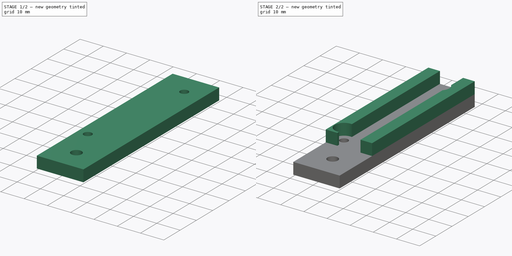
[diagram: build sequence overview — one tinted view per stage of 2, left to right]
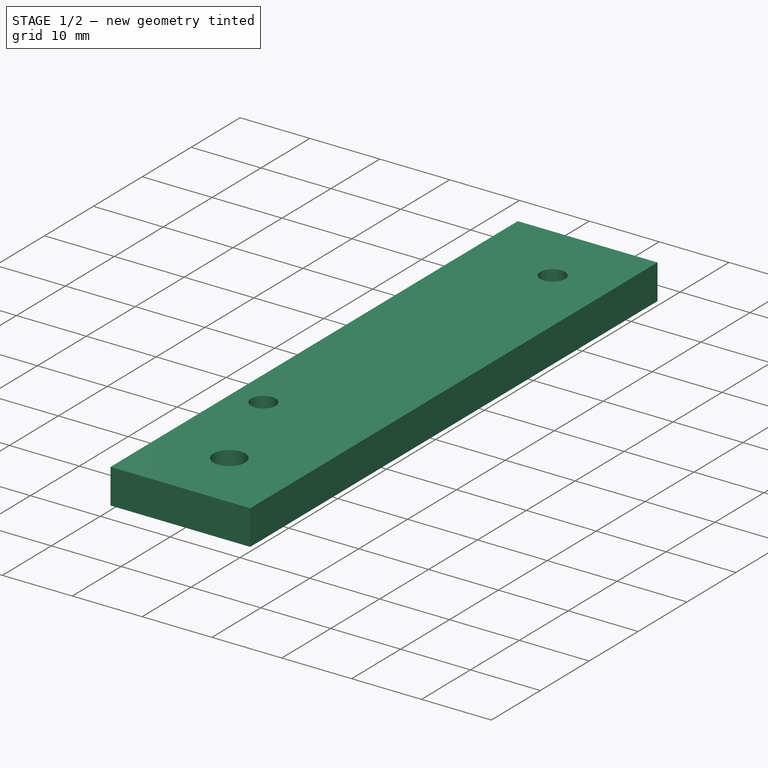
[diagram: stage 1 of 2 — iso view after this stage's code; geometry added in this stage tinted green]
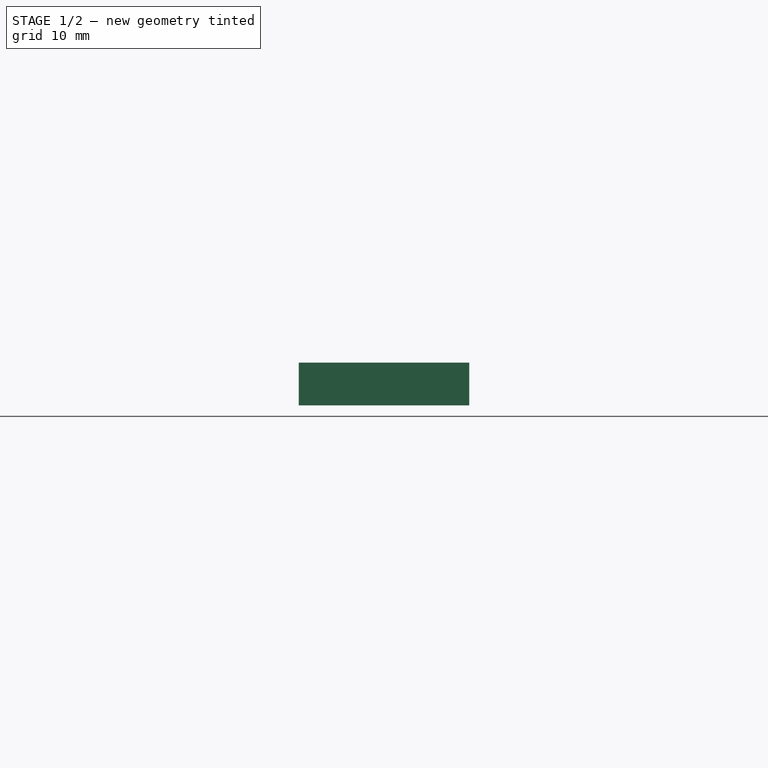
[diagram: stage 1 of 2 — front view after this stage's code; geometry added in this stage tinted green]
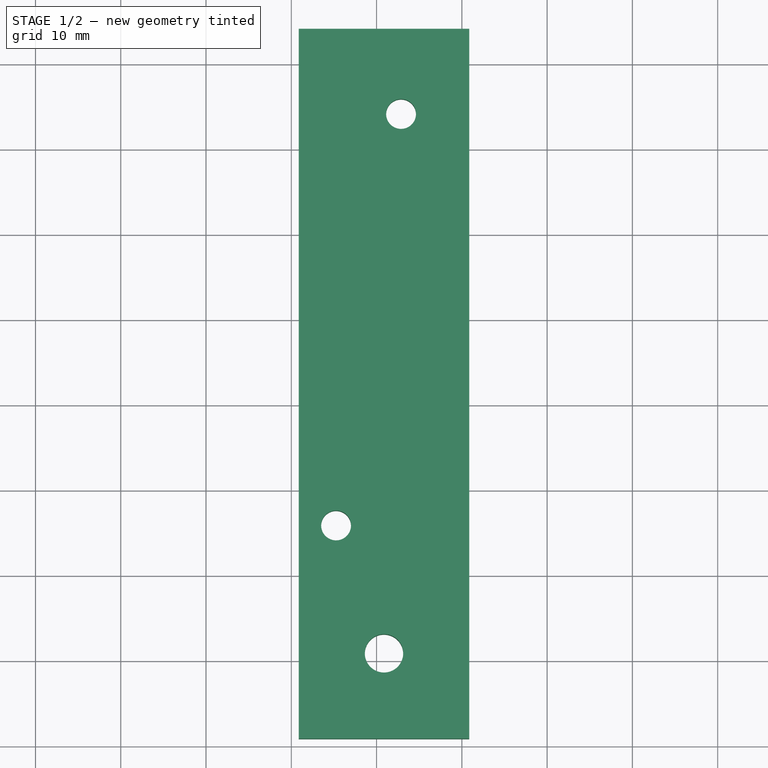
[diagram: stage 1 of 2 — top view after this stage's code; geometry added in this stage tinted green]
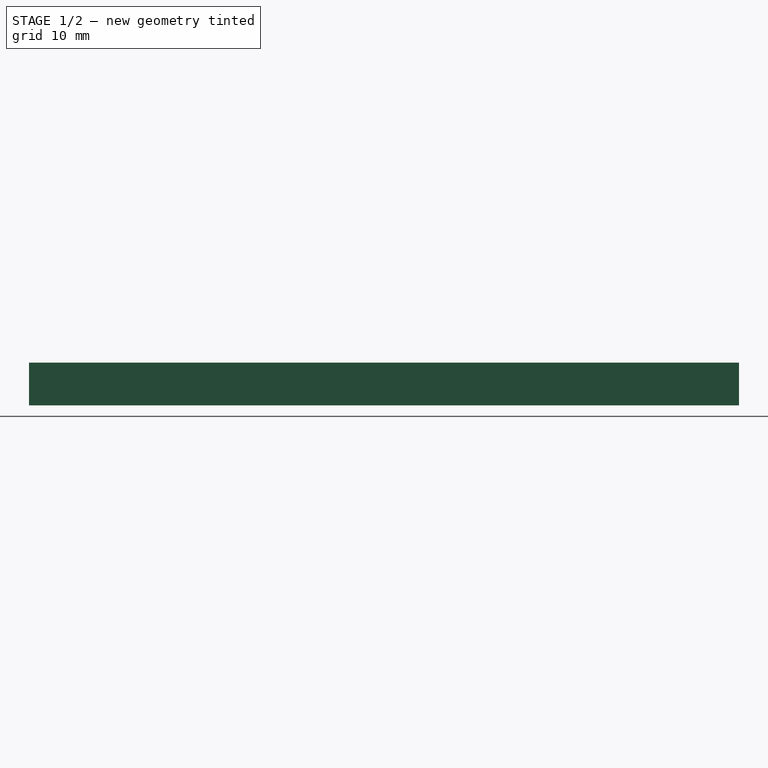
[diagram: stage 1 of 2 — right view after this stage's code; geometry added in this stage tinted green]
FCSTD DOCUMENT
Label: RAMPS-mount-2
objects: Sketcher::SketchObject×2, PartDesign::Pad×2
note: 6 computed .brp shape members not serialized (recipe doc carries the construction recipe); baked Part::Feature solids carry a one-line shape summary decoded from their .brp

FEATURE [Sketcher::SketchObject] Sketch
  sketch-geometry (7):
    g0: Circle CenterX=25.25 CenterY=-24.13 CenterZ=0 NormalX=0 NormalY=0 NormalZ=1 Radius=1.75
    g1: Circle CenterX=32.87 CenterY=24.13 CenterZ=0 NormalX=0 NormalY=0 NormalZ=1 Radius=1.75
    g2: Circle CenterX=30.87 CenterY=-39.13 CenterZ=0 NormalX=0 NormalY=0 NormalZ=1 Radius=2.25
    g3: LineSegment StartX=40.87 StartY=-49.13 StartZ=0 EndX=40.87 EndY=34.13 EndZ=0
    g4: LineSegment StartX=20.87 StartY=34.13 StartZ=0 EndX=20.87 EndY=-49.13 EndZ=0
    g5: LineSegment StartX=20.87 StartY=-49.13 StartZ=0 EndX=40.87 EndY=-49.13 EndZ=0
    g6: LineSegment StartX=20.87 StartY=34.13 StartZ=0 EndX=40.87 EndY=34.13 EndZ=0
  constraints (21):
    c: Radius(g1) = 1.75
    c: Vertical(g3)
    c: DistanceX(g1) = 32.87
    c: DistanceY(g1) = 24.13
    c: DistanceX(g0) = 25.25
    c: DistanceY(g0) = -24.13
    c: Vertical(g4)
    c: Coincident(g4,g5)
    c: Coincident(g5,g3)
    c: Horizontal(g5)
    c: DistanceY(g2,g3) = -10
    c: DistanceX(g2,g3) = 10
    c: Distance(g5) = 20
    c: Coincident(g6,g4)
    c: Coincident(g6,g3)
    c: Horizontal(g6)
    c: DistanceX(g1,g4) = -12
    c: DistanceY(g1,g4) = 10
    c: Radius(g2) = 2.25
    c: Equal(g0,g1)
    c: DistanceY(g0,g4) = -25
FEATURE [PartDesign::Pad] Pad
  Length = 5
  Length2 = 100
  Sketch = -> Sketch
  Type = 0
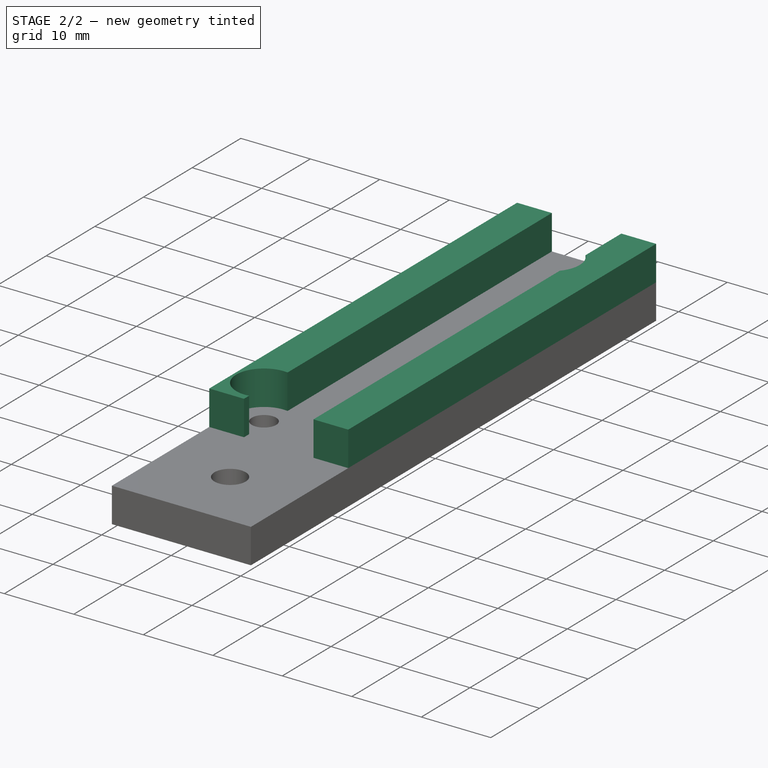
[diagram: stage 2 of 2 — iso view after this stage's code; geometry added in this stage tinted green]
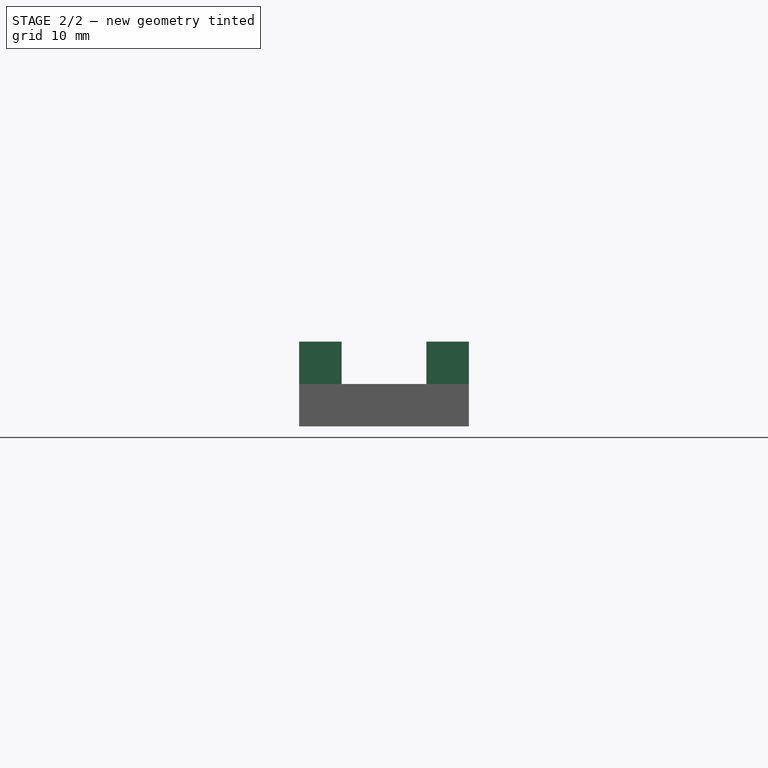
[diagram: stage 2 of 2 — front view after this stage's code; geometry added in this stage tinted green]
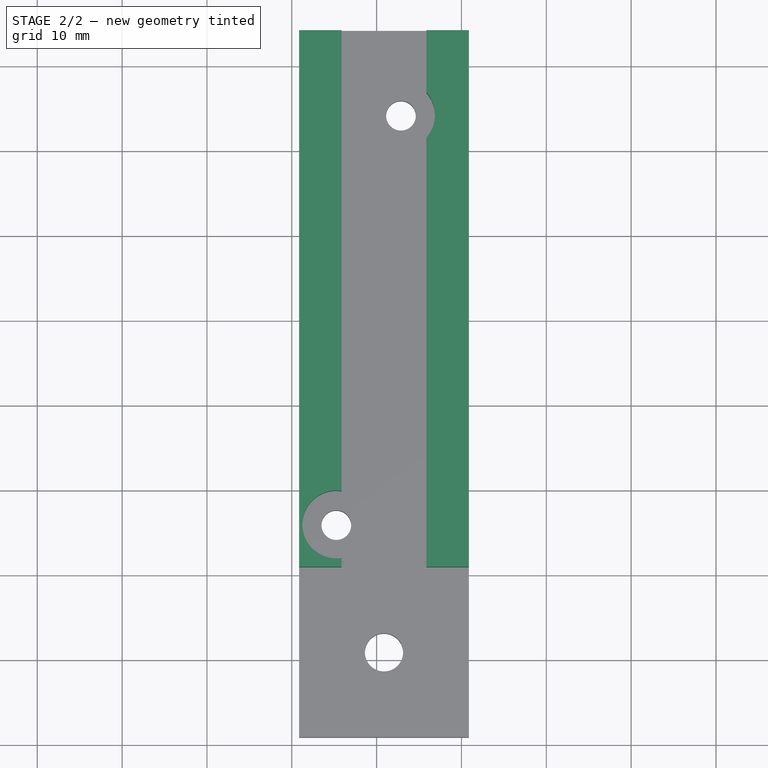
[diagram: stage 2 of 2 — top view after this stage's code; geometry added in this stage tinted green]
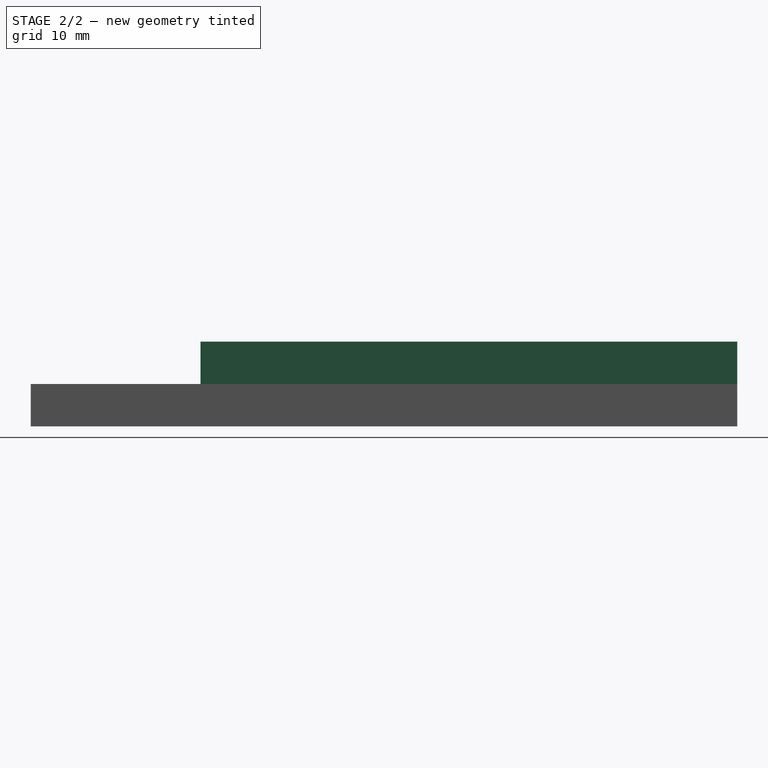
[diagram: stage 2 of 2 — right view after this stage's code; geometry added in this stage tinted green]
FEATURE [Sketcher::SketchObject] Sketch001
  ExternalGeometry = -> [Pad]
  Placement = pos=(0,0,5) rot=(0,0,1;0rad)
  Support = -> Pad [Face9]
  sketch-geometry (12):
    g0: LineSegment StartX=20.87 StartY=34.13 StartZ=0 EndX=20.87 EndY=-29.13 EndZ=0
    g1: LineSegment StartX=20.87 StartY=-29.13 StartZ=0 EndX=25.87 EndY=-29.13 EndZ=0
    g2: LineSegment StartX=25.87 StartY=-29.13 StartZ=0 EndX=25.87 EndY=-28.0817 EndZ=0
    g3: LineSegment StartX=20.87 StartY=34.13 StartZ=0 EndX=25.87 EndY=34.13 EndZ=0
    g4: LineSegment StartX=25.87 StartY=34.13 StartZ=0 EndX=25.87 EndY=-20.1783 EndZ=0
    g5: ArcOfCircle CenterX=25.25 CenterY=-24.13 CenterZ=0 NormalX=0 NormalY=0 NormalZ=1 Radius=4 StartAngle=1.41517 EndAngle=4.86802
    g6: LineSegment StartX=40.87 StartY=34.13 StartZ=0 EndX=35.87 EndY=34.13 EndZ=0
    g7: LineSegment StartX=35.87 StartY=-29.13 StartZ=0 EndX=40.87 EndY=-29.13 EndZ=0
    g8: LineSegment StartX=40.87 StartY=-29.13 StartZ=0 EndX=40.87 EndY=34.13 EndZ=0
    g9: LineSegment StartX=35.87 StartY=-29.13 StartZ=0 EndX=35.87 EndY=21.4842 EndZ=0
    g10: LineSegment StartX=35.87 StartY=34.13 StartZ=0 EndX=35.87 EndY=26.7758 EndZ=0
    g11: ArcOfCircle CenterX=32.87 CenterY=24.13 CenterZ=0 NormalX=0 NormalY=0 NormalZ=1 Radius=4 StartAngle=5.56045 EndAngle=7.00592
  constraints (34):
    c: Coincident(g0,g-3)
    c: Vertical(g2)
    c: Coincident(g0,g3)
    c: Coincident(g3,g4)
    c: PointOnObject(g3,g-3)
    c: Vertical(g4)
    c: Distance(g0,g3) = 5
    c: Coincident(g5,g4)
    c: Coincident(g2,g5)
    c: Radius(g5) = 4
    c: PointOnObject(g2,g4)
    c: Coincident(g2,g1)
    c: Coincident(g7,g8)
    c: Coincident(g8,g6)
    c: Horizontal(g6)
    c: Horizontal(g7)
    c: Vertical(g8)
    c: Coincident(g6,g-3)
    c: Distance(g6,g6) = 5
    c: Coincident(g9,g7)
    c: Vertical(g10)
    c: Coincident(g11,g10)
    c: Coincident(g11,g9)
    c: Equal(g5,g11)
    c: Vertical(g9)
    c: PointOnObject(g9,g10)
    c: Coincident(g6,g10)
    c: Coincident(g1,g0)
    c: PointOnObject(g1,g7)
    c: Horizontal(g1)
    c: Vertical(g0)
    c: Distance(g0,g-4) = 20
    c: Coincident(g-5,g5)
    c: Coincident(g11,g-6)
FEATURE [PartDesign::Pad] Pad001
  Length = 5
  Length2 = 100
  Sketch = -> Sketch001
  Type = 0
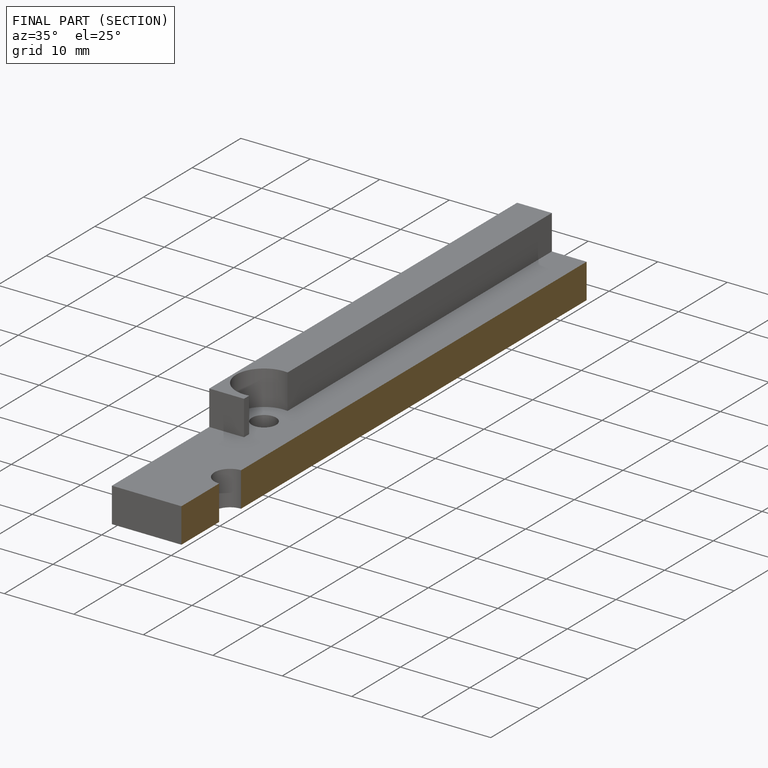
[diagram: finished part — half-section view (interior)]
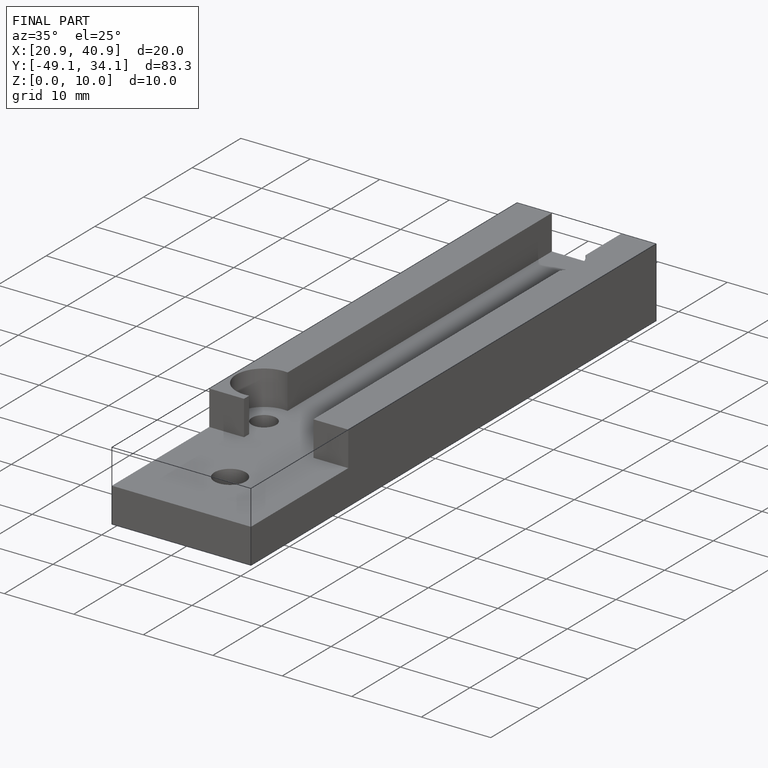
[diagram: finished part — iso view with bounding-box wireframe]
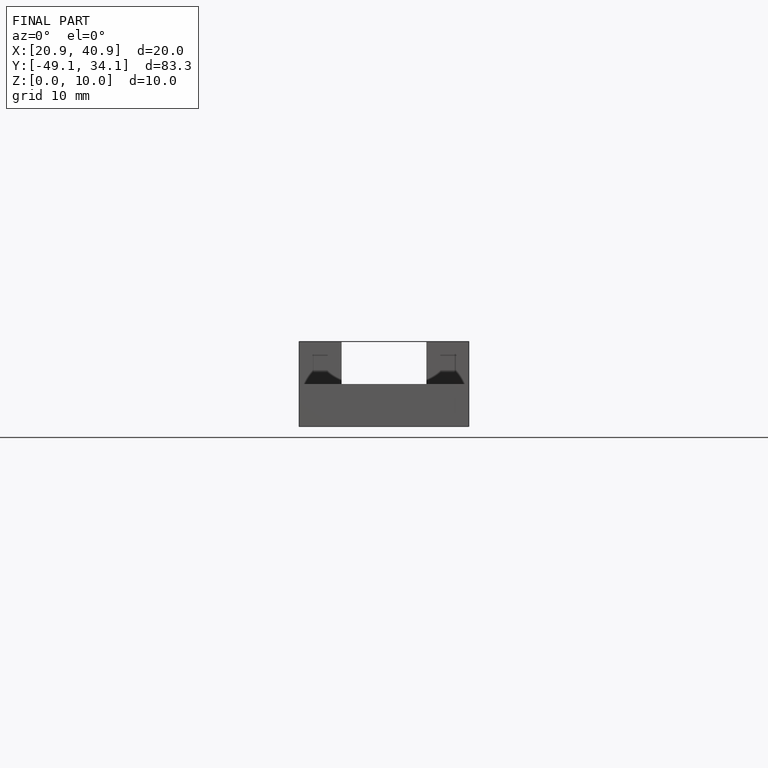
[diagram: finished part — front view with bounding-box wireframe]
